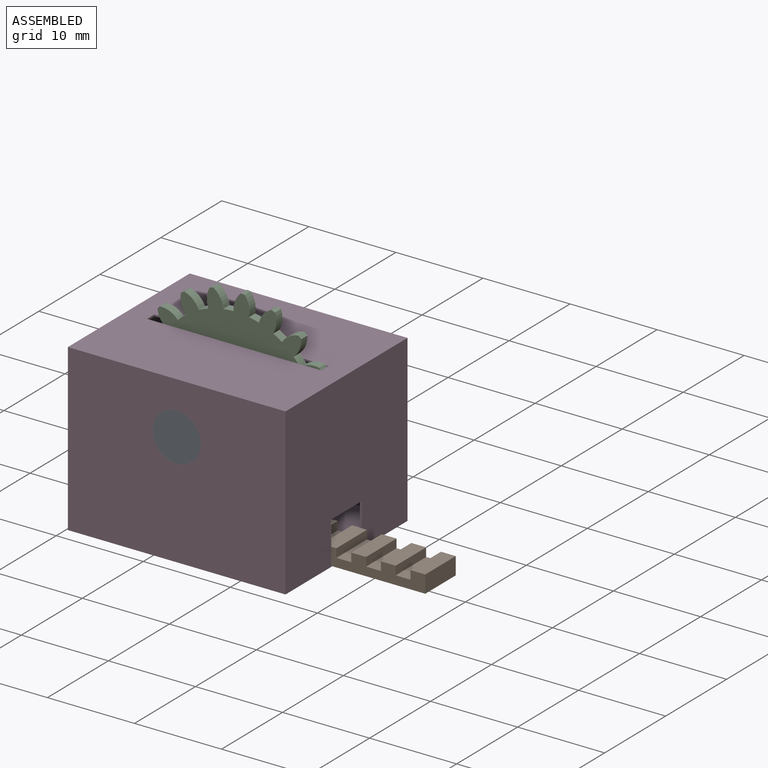
[diagram: assembled view]
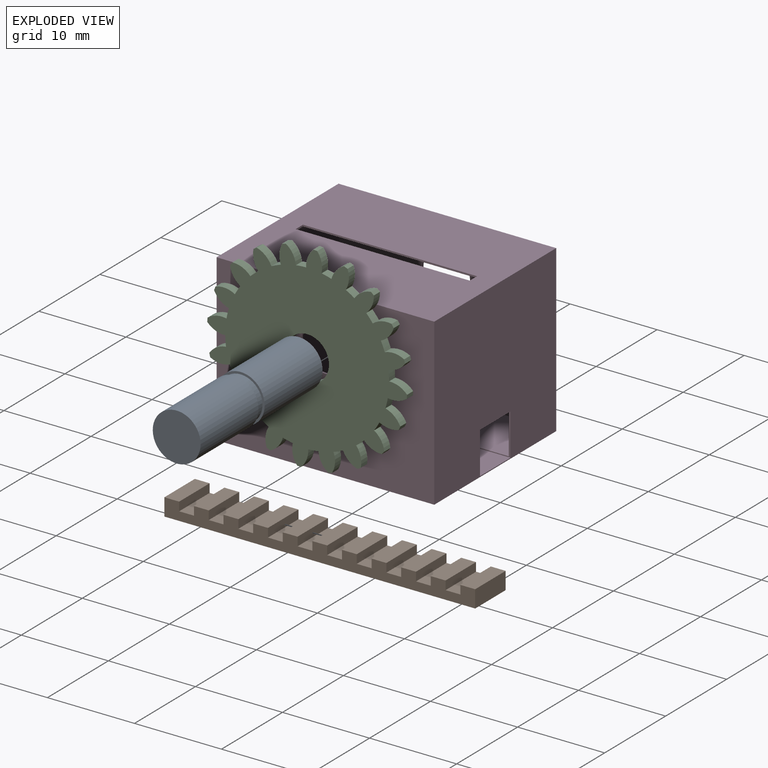
[diagram: exploded view]
GUIDED TOUR — MATED ASSEMBLY (Onshape document 58fee1694ee56b10306d2a6e, AutoMate assembly 58fee1694ee56b10306d2a6e_63d0f6873e6105f51c30c18d_0b6f07d7cc660a0ac1f73ef1_default)

This assembly has 4 components, labeled P0..P3 below (a component is one placed occurrence of a part; the same part can appear more than once), held together by 3 mates. A mate is a constraint between two components; its type names the relative motion it leaves free:
  FASTENED — locks the two components together rigidly (no relative motion),
  REVOLUTE — leaves rotation about the listed axis free (a hinge),
  SLIDER — leaves translation along the listed axis free.
Axis/direction vectors are unit vectors and 'through' points are millimeter coordinates, both in the assembly's world frame.

MATES
  1. FASTENED "Fastened 1": P3 <-> P0, direction (0.000, 1.000, 0.000) through (3.57, 0.49, -0.34) mm
  2. SLIDER "Slider 1": P3 <-> P1, axis (1.000, 0.000, 0.000) through (-8.83, 10.39, -10.84) mm
  3. REVOLUTE "Revolute 1": P0 <-> P2, axis (0.000, 1.000, 0.000) through (3.57, 10.39, -0.34) mm

ASSEMBLY ORDER
  1. P0 — the base component [order heuristic]
  2. P2 [order heuristic]
  3. P3 [order heuristic]
  4. P1 [order heuristic]
Order-tag legend:
  [order heuristic] — this assembly is geometrically interlocked (no collision-free removal order exists), so components are listed in mate-graph order; insertion feasibility is not verified.

Of the 4 components, 3 carry the full construction recipe — the FeatureScript program that regenerates the part's solid from scratch; the rest are supplied as boundary geometry only.
Each toured component is shown spotlighted twice — in the assembled view, then in the exploded view, where a leader line traces a displaced component back to its assembled socket (saturated green if recipe-attached, orange if geometry-only; every other component desaturated gray) — followed by its recipe or geometry summary and the mates that hold it.
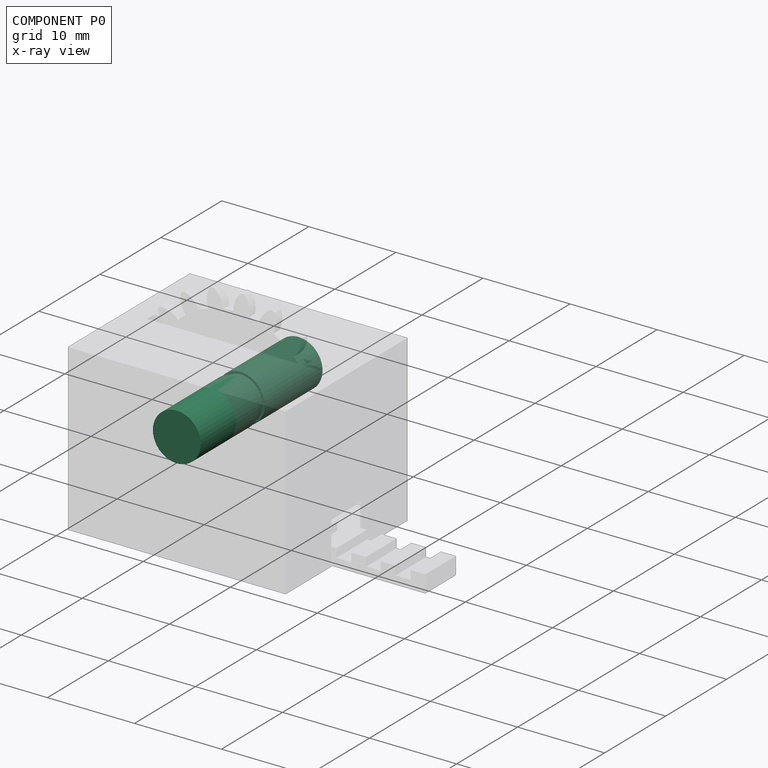
[diagram: component P0 — x-ray view]
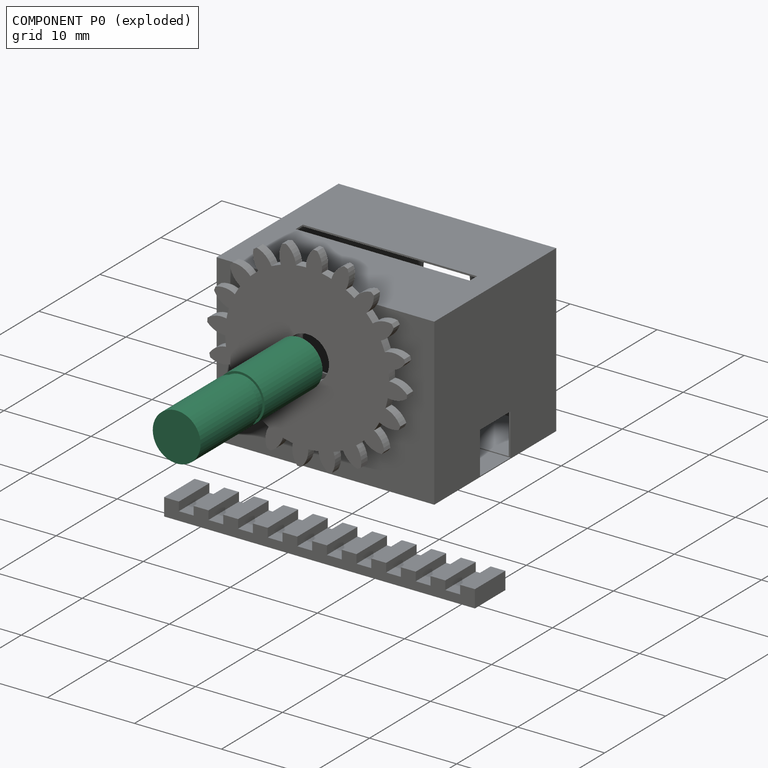
[diagram: component P0 — exploded]
COMPONENT P0 — recipe-attached (CADFS 00737201, mesh-verified: the recipe's output STEP matches this component's geometry to below the mesh-comparison resolution (tessellation chordal tolerance ~0.0322 mm)).
Held by: FASTENED mate "Fastened 1" to P3; REVOLUTE mate "Revolute 1" to P2.
Construction recipe (FeatureScript — the CAD program that rebuilds this solid; sketch coordinates are in the units given by the * unit suffixes, e.g. mm):

FeatureScript 1511;
import(path : "onshape/std/geometry.fs", version : "1511.0");
import(path : "onshape/std/common.fs", version : "1511.0");
const mm = millimeter;
const VERTEX = EntityType.VERTEX;
const EDGE = EntityType.EDGE;
const FACE = EntityType.FACE;
const BODY = EntityType.BODY;
function v(x, y){return vector(x, y);}
function OD(order){return orderDisambiguation(order);}
function OSD(set){return originalSetDisambiguation(set);}
function TD(topology){return topologyDisambiguation(topology);}
function TDD(query){return trueDependencyDisambiguation(query);}
function sQuery(a, b, c) {return sketchEntityQuery(a, b, c);}

annotation { "Feature Type Name" : "Feature", "Feature Type Description" : "" }
export const myFeature = defineFeature(function(context is Context, id is Id, definition is map)
    precondition{}
    {
        {
            var Q0;
            Q0=qCreatedBy(makeId("Front.planeOp"),FACE);
            var sketch = newSketch(context, id + "F0", { "sketchPlane" : qUnion([Q0])});
            skCircle(sketch, "E0", {"center": v(0, 0) * mm, "radius": 2.5 * mm});
            skSolve(sketch);
        }
        {
            var Q0;
            Q0=makeQuery(id+"F0.imprint","IMPRINT",FACE,{"disambiguationData":[TD([[makeQuery(id+"F0.imprint","IMPRINT",EDGE,{"derivedFrom":sQuery(id+"F0.wireOp",EDGE,"E0")}),1.0]])]});
            extrude(context, id + "F1", {"entities" : qUnion([Q0]), "depth" : 1 * mm, "offsetDistance" : 25 * mm});
        }
        {
            var Q0;
            Q0=makeQuery(id+"F1.opExtrude","CAP_FACE",FACE,{"disambiguationData":[OSD([sQuery(id+"F0.wireOp",EDGE,"E0")])],"isStart":true});
            var sketch = newSketch(context, id + "F2", { "sketchPlane" : qUnion([Q0])});
            skCircle(sketch, "E1", {"center": v(0, 0) * mm, "radius": 2.75 * mm});
            skSolve(sketch);
        }
        {
            var Q0;
            Q0 = qSketchRegion(id + "F2", true);
            extrude(context, id + "F3", {"entities" : qUnion([Q0]), "operationType" : NewBodyOperationType.ADD, "depth" : 9.5 * mm, "offsetDistance" : 25 * mm});
        }
        {
            var Q0;
            Q0=makeQuery(id+"F1.opExtrude","CAP_FACE",FACE,{"disambiguationData":[OSD([sQuery(id+"F0.wireOp",EDGE,"E0")])],"isStart":false});
            var sketch = newSketch(context, id + "F4", { "sketchPlane" : qUnion([Q0])});
            skCircle(sketch, "E2", {"center": v(0, 0) * mm, "radius": 2.75 * mm});
            skSolve(sketch);
        }
        {
            var Q0;
            Q0 = qSketchRegion(id + "F4", true);
            extrude(context, id + "F5", {"entities" : qUnion([Q0]), "operationType" : NewBodyOperationType.ADD, "depth" : 9.5 * mm, "offsetDistance" : 25 * mm});
        }
    });
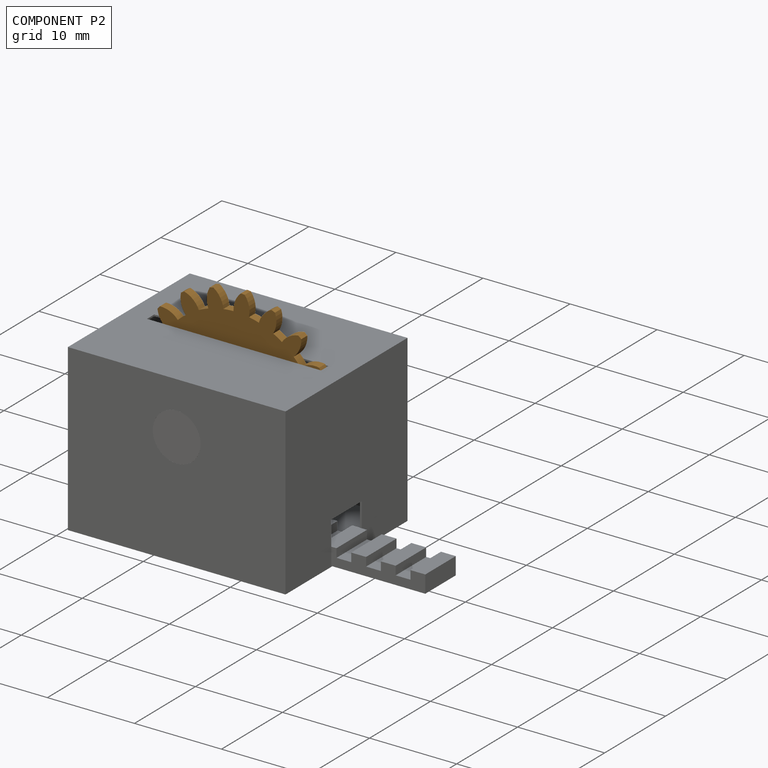
[diagram: component P2 — assembled]
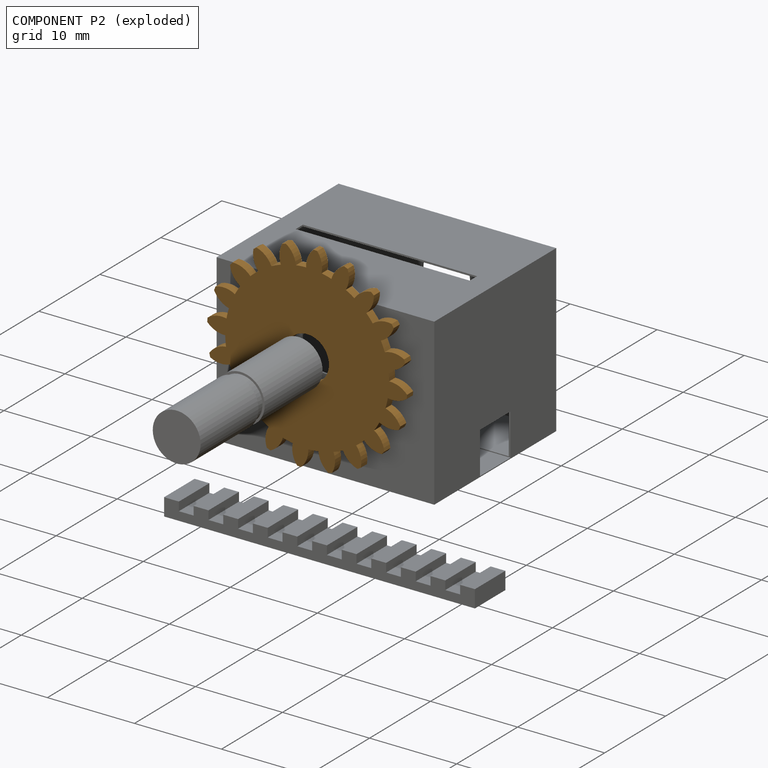
[diagram: component P2 — exploded]
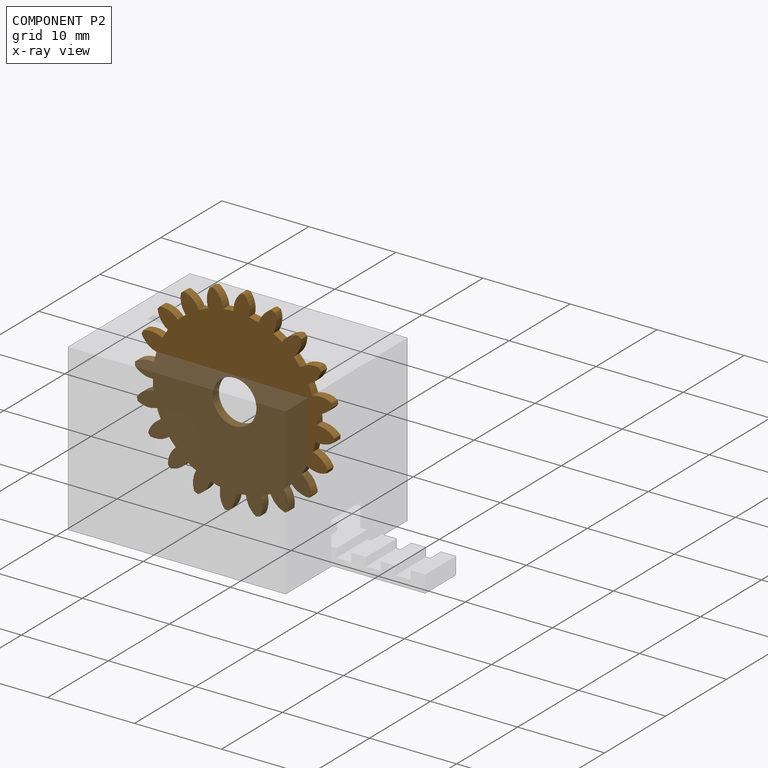
[diagram: component P2 — x-ray view]
COMPONENT P2 — geometry summary (no construction recipe available for this part):
  bounding box: 23.0 x 23.0 x 1.0 mm
  B-rep topology: 1 solid, 83 faces, 486 edges
  volume: 320 mm^3 (61% of its bounding box)
  symmetry: 4-fold rotationally symmetric about the z axis; mirror-symmetric across its z mid-plane
Held by: REVOLUTE mate "Revolute 1" to P0.
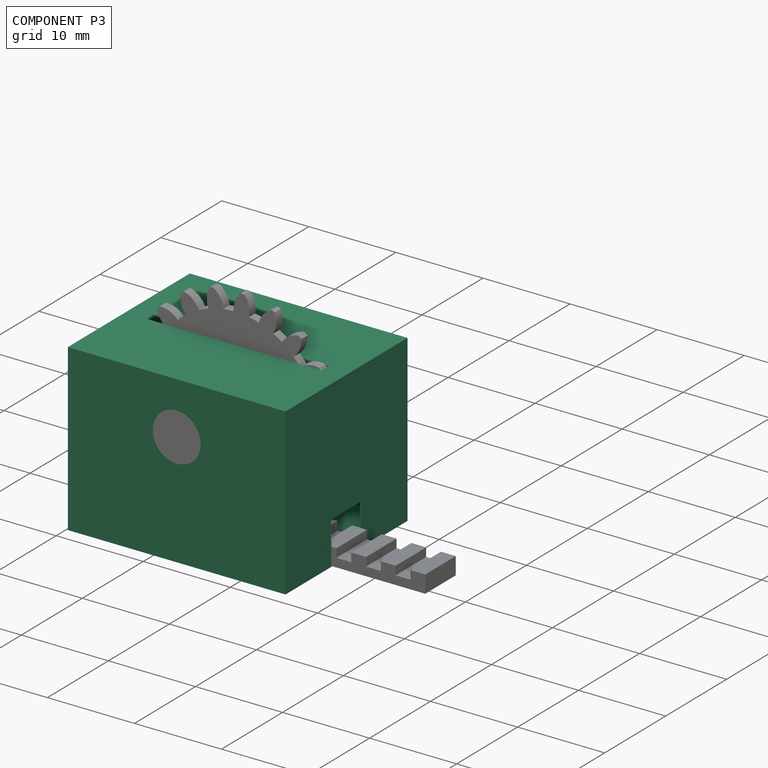
[diagram: component P3 — assembled]
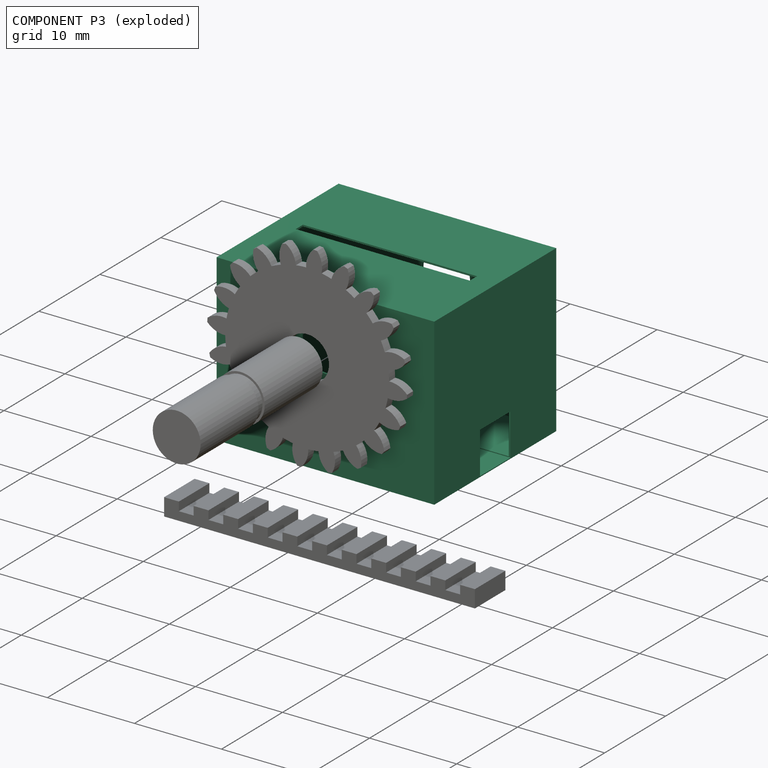
[diagram: component P3 — exploded]
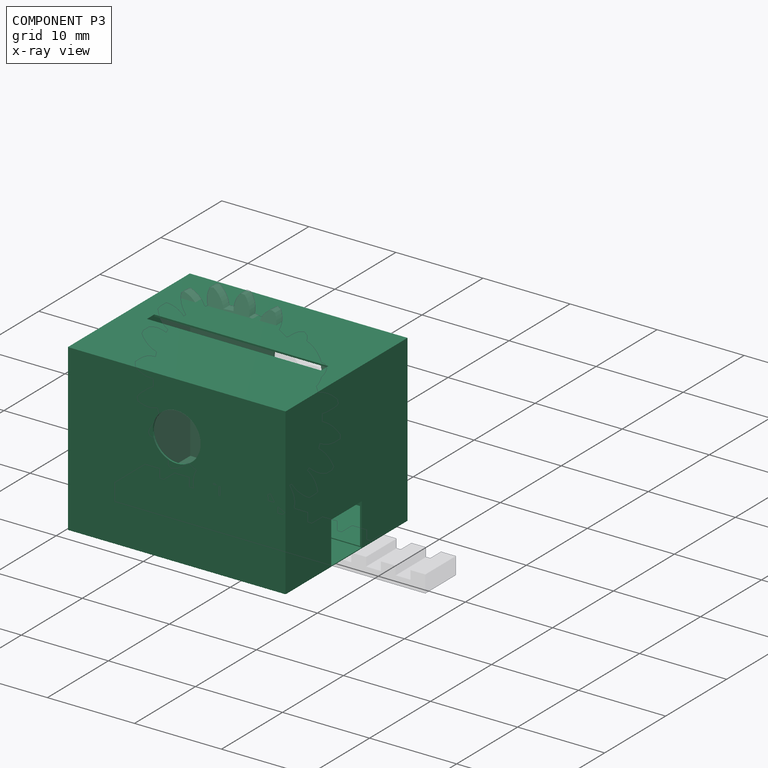
[diagram: component P3 — x-ray view]
COMPONENT P3 — recipe-attached (CADFS 00737203, mesh-verified: the recipe's output STEP matches this component's geometry to below the mesh-comparison resolution (tessellation chordal tolerance ~0.0558 mm)).
Held by: FASTENED mate "Fastened 1" to P0; SLIDER mate "Slider 1" to P1.
Construction recipe (FeatureScript — the CAD program that rebuilds this solid; sketch coordinates are in the units given by the * unit suffixes, e.g. mm):

FeatureScript 1511;
import(path : "onshape/std/geometry.fs", version : "1511.0");
import(path : "onshape/std/common.fs", version : "1511.0");
const mm = millimeter;
const VERTEX = EntityType.VERTEX;
const EDGE = EntityType.EDGE;
const FACE = EntityType.FACE;
const BODY = EntityType.BODY;
function v(x, y){return vector(x, y);}
function OD(order){return orderDisambiguation(order);}
function OSD(set){return originalSetDisambiguation(set);}
function TD(topology){return topologyDisambiguation(topology);}
function TDD(query){return trueDependencyDisambiguation(query);}
function sQuery(a, b, c) {return sketchEntityQuery(a, b, c);}

annotation { "Feature Type Name" : "Feature", "Feature Type Description" : "" }
export const myFeature = defineFeature(function(context is Context, id is Id, definition is map)
    precondition{}
    {
        {
            var Q0;
            Q0=qCreatedBy(makeId("Front.planeOp"),FACE);
            var sketch = newSketch(context, id + "F0", { "sketchPlane" : qUnion([Q0])});
            skLineSegment(sketch, "E0.bottom", {"start": v(0, 0) * mm, "end": v(-25, 0) * mm});
            skLineSegment(sketch, "E0.top", {"start": v(0, 19) * mm, "end": v(-25, 19) * mm});
            skLineSegment(sketch, "E0.left", {"start": v(0, 0) * mm, "end": v(0, 19) * mm});
            skLineSegment(sketch, "E0.right", {"start": v(-25, 0) * mm, "end": v(-25, 19) * mm});
            skSolve(sketch);
        }
        {
            var Q0;
            Q0=makeQuery(id+"F0.imprint","IMPRINT",FACE,{"disambiguationData":[TD([[makeQuery(id+"F0.imprint","IMPRINT",EDGE,{"derivedFrom":sQuery(id+"F0.wireOp",EDGE,"E0.bottom")}),-1.0]])]});
            extrude(context, id + "F1", {"entities" : qUnion([Q0]), "depth" : 20 * mm, "offsetDistance" : 25 * mm});
        }
        {
            var Q0;
            Q0=qCreatedBy(makeId("Front.planeOp"),FACE);
            var sketch = newSketch(context, id + "F2", { "sketchPlane" : qUnion([Q0])});
            skCircle(sketch, "E1", {"center": v(-12.5, 13) * mm, "radius": 2.75 * mm});
            skSolve(sketch);
        }
        {
            var Q0;
            Q0=makeQuery(id+"F1.opExtrude","CAP_FACE",FACE,{"disambiguationData":[OSD([sQuery(id+"F0.wireOp",EDGE,"E0.bottom"),sQuery(id+"F0.wireOp",EDGE,"E0.top"),sQuery(id+"F0.wireOp",EDGE,"E0.left"),sQuery(id+"F0.wireOp",EDGE,"E0.right")])],"isStart":true});
            var Q1;
            Q1=makeQuery(id+"F1.opExtrude","SWEPT_BODY",BODY,{"disambiguationData":[OSD([sQuery(id+"F0.wireOp",EDGE,"E0.bottom"),sQuery(id+"F0.wireOp",EDGE,"E0.top"),sQuery(id+"F0.wireOp",EDGE,"E0.left"),sQuery(id+"F0.wireOp",EDGE,"E0.right")])]});
            shell(context, id + "F3", {"isHollow" : true, "entities" : qUnion([Q0]), "parts" : qUnion([Q1]), "thickness" : 0.2 * mm});
        }
        {
            var Q0;
            Q0=makeQuery(id+"F2.imprint","IMPRINT",FACE,{"disambiguationData":[TD([[makeQuery(id+"F2.imprint","IMPRINT",EDGE,{"derivedFrom":sQuery(id+"F2.wireOp",EDGE,"E1")}),1.0]])]});
            extrude(context, id + "F4", {"entities" : qUnion([Q0]), "operationType" : NewBodyOperationType.REMOVE, "oppositeDirection" : true, "depth" : -25 * mm, "offsetDistance" : 25 * mm});
        }
        {
            var Q0;
            Q0=makeQuery(id+"F1.opExtrude","SWEPT_FACE",FACE,{"disambiguationData":[OSD([sQuery(id+"F0.wireOp",EDGE,"E0.top")])]});
            var sketch = newSketch(context, id + "F5", { "sketchPlane" : qUnion([Q0])});
            skLineSegment(sketch, "E2.bottom", {"start": v(-22.5, -9.4) * mm, "end": v(-2.5, -9.4) * mm});
            skLineSegment(sketch, "E2.top", {"start": v(-22.5, -10.6) * mm, "end": v(-2.5, -10.6) * mm});
            skLineSegment(sketch, "E2.left", {"start": v(-22.5, -9.4) * mm, "end": v(-22.5, -10.6) * mm});
            skLineSegment(sketch, "E2.right", {"start": v(-2.5, -9.4) * mm, "end": v(-2.5, -10.6) * mm});
            skSolve(sketch);
        }
        {
            var Q0;
            Q0 = qSketchRegion(id + "F5", true);
            extrude(context, id + "F6", {"entities" : qUnion([Q0]), "operationType" : NewBodyOperationType.REMOVE, "oppositeDirection" : true, "depth" : 1 * mm, "offsetDistance" : 25 * mm});
        }
        {
            var Q0;
            Q0=makeQuery(id+"F1.opExtrude","SWEPT_FACE",FACE,{"disambiguationData":[OSD([sQuery(id+"F0.wireOp",EDGE,"E0.left")])]});
            var sketch = newSketch(context, id + "F7", { "sketchPlane" : qUnion([Q0])});
            skLineSegment(sketch, "E3.bottom", {"start": v(-12.5, 4.9) * mm, "end": v(-7.5, 4.9) * mm});
            skLineSegment(sketch, "E3.top", {"start": v(-12.5, 0.1) * mm, "end": v(-7.5, 0.1) * mm});
            skLineSegment(sketch, "E3.left", {"start": v(-12.5, 4.9) * mm, "end": v(-12.5, 0.1) * mm});
            skLineSegment(sketch, "E3.right", {"start": v(-7.5, 4.9) * mm, "end": v(-7.5, 0.1) * mm});
            skSolve(sketch);
        }
        {
            var Q0;
            Q0 = qSketchRegion(id + "F7", true);
            extrude(context, id + "F8", {"entities" : qUnion([Q0]), "operationType" : NewBodyOperationType.REMOVE, "oppositeDirection" : true, "depth" : 24.9 * mm, "offsetDistance" : 25 * mm});
        }
    });
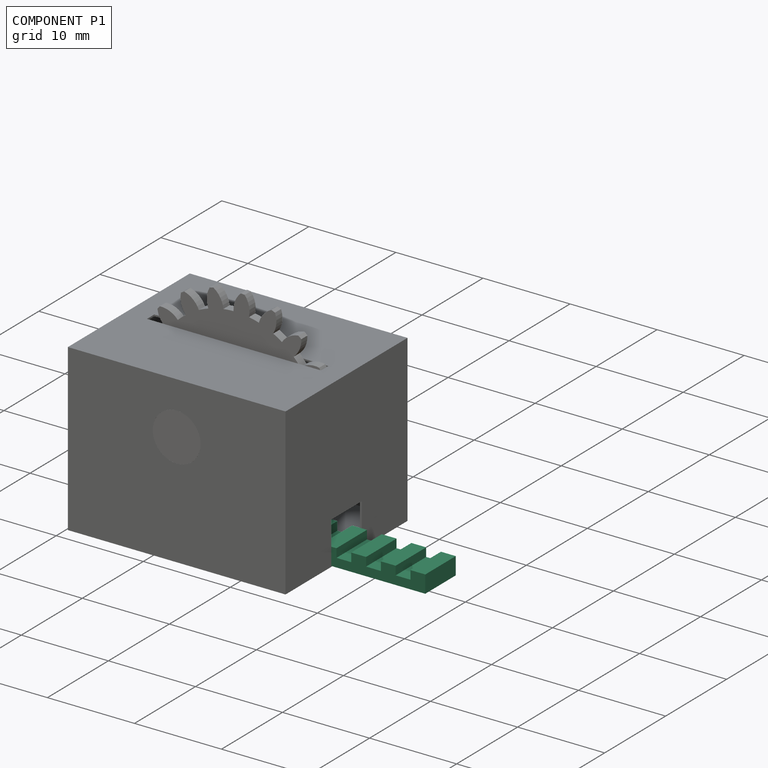
[diagram: component P1 — assembled]
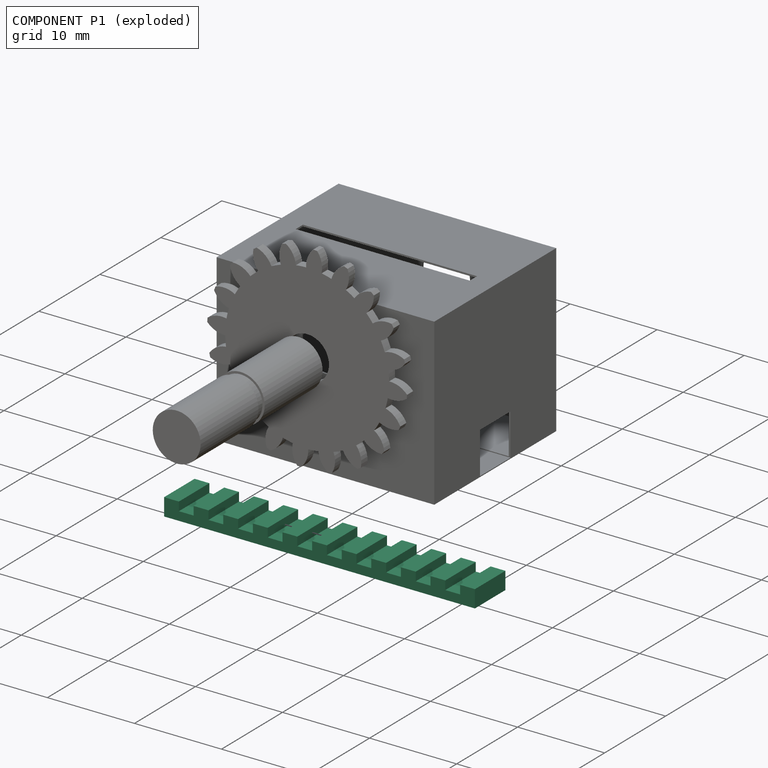
[diagram: component P1 — exploded]
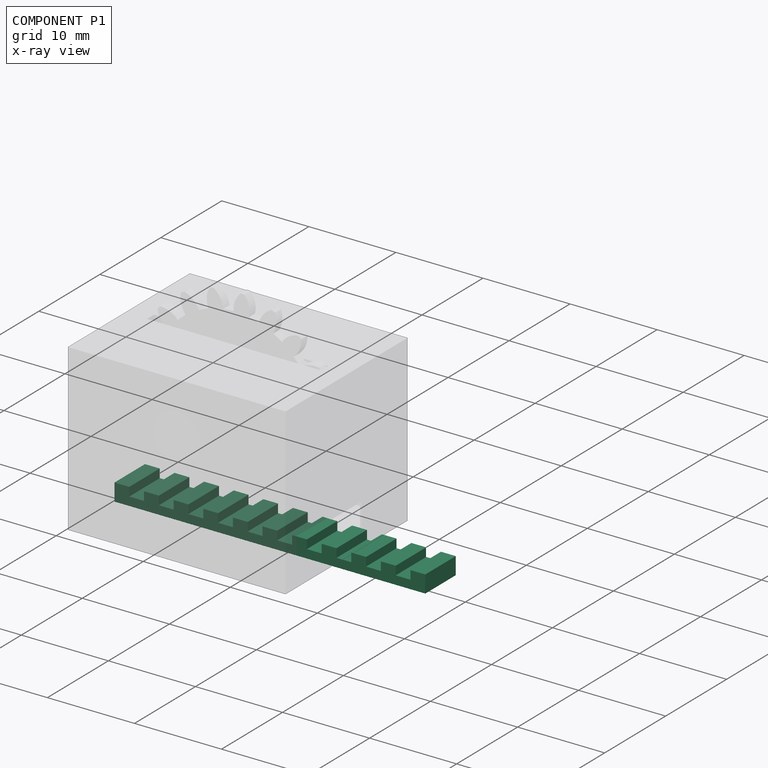
[diagram: component P1 — x-ray view]
COMPONENT P1 — recipe-attached (CADFS 00737202, mesh-verified: the recipe's output STEP matches this component's geometry to below the mesh-comparison resolution (tessellation chordal tolerance ~0.0542 mm)).
Held by: SLIDER mate "Slider 1" to P3.
Construction recipe (FeatureScript — the CAD program that rebuilds this solid; sketch coordinates are in the units given by the * unit suffixes, e.g. mm):

FeatureScript 1511;
import(path : "onshape/std/geometry.fs", version : "1511.0");
import(path : "onshape/std/common.fs", version : "1511.0");
const mm = millimeter;
const VERTEX = EntityType.VERTEX;
const EDGE = EntityType.EDGE;
const FACE = EntityType.FACE;
const BODY = EntityType.BODY;
function v(x, y){return vector(x, y);}
function OD(order){return orderDisambiguation(order);}
function OSD(set){return originalSetDisambiguation(set);}
function TD(topology){return topologyDisambiguation(topology);}
function TDD(query){return trueDependencyDisambiguation(query);}
function sQuery(a, b, c) {return sketchEntityQuery(a, b, c);}

annotation { "Feature Type Name" : "Feature", "Feature Type Description" : "" }
export const myFeature = defineFeature(function(context is Context, id is Id, definition is map)
    precondition{}
    {
        {
            var Q0;
            Q0=qCreatedBy(makeId("Front.planeOp"),FACE);
            var sketch = newSketch(context, id + "F0", { "sketchPlane" : qUnion([Q0])});
            skLineSegment(sketch, "E0.bottom", {"start": v(0, 0) * mm, "end": v(-35.7, 0) * mm});
            skLineSegment(sketch, "E0.top", {"start": v(0, 2) * mm, "end": v(-35.7, 2) * mm});
            skLineSegment(sketch, "E0.left", {"start": v(0, 0) * mm, "end": v(0, 2) * mm});
            skLineSegment(sketch, "E0.right", {"start": v(-35.7, 0) * mm, "end": v(-35.7, 2) * mm});
            skSolve(sketch);
        }
        {
            var Q0;
            Q0=makeQuery(id+"F0.imprint","IMPRINT",FACE,{"disambiguationData":[TD([[makeQuery(id+"F0.imprint","IMPRINT",EDGE,{"derivedFrom":sQuery(id+"F0.wireOp",EDGE,"E0.bottom")}),-1.0]])]});
            extrude(context, id + "F1", {"entities" : qUnion([Q0]), "depth" : 5 * mm, "offsetDistance" : 25 * mm});
        }
        {
            var Q0;
            Q0=makeQuery(id+"F1.opExtrude","CAP_FACE",FACE,{"disambiguationData":[OSD([sQuery(id+"F0.wireOp",EDGE,"E0.bottom"),sQuery(id+"F0.wireOp",EDGE,"E0.top"),sQuery(id+"F0.wireOp",EDGE,"E0.left"),sQuery(id+"F0.wireOp",EDGE,"E0.right")])],"isStart":false});
            var sketch = newSketch(context, id + "F2", { "sketchPlane" : qUnion([Q0])});
            skLineSegment(sketch, "E1.bottom", {"start": v(-34, 2) * mm, "end": v(-32.3, 2) * mm});
            skLineSegment(sketch, "E1.top", {"start": v(-34, 1) * mm, "end": v(-32.3, 1) * mm});
            skLineSegment(sketch, "E1.left", {"start": v(-34, 2) * mm, "end": v(-34, 1) * mm});
            skLineSegment(sketch, "E1.right", {"start": v(-32.3, 2) * mm, "end": v(-32.3, 1) * mm});
            skLineSegment(sketch, "E2.1.0.0", {"start": v(-30.6, 2) * mm, "end": v(-28.9, 2) * mm});
            skLineSegment(sketch, "E2.1.0.1", {"start": v(-28.9, 2) * mm, "end": v(-28.9, 1) * mm});
            skLineSegment(sketch, "E2.1.0.2", {"start": v(-30.6, 1) * mm, "end": v(-28.9, 1) * mm});
            skLineSegment(sketch, "E2.1.0.3", {"start": v(-30.6, 2) * mm, "end": v(-30.6, 1) * mm});
            skLineSegment(sketch, "E2.2.0.0", {"start": v(-27.2, 2) * mm, "end": v(-25.5, 2) * mm});
            skLineSegment(sketch, "E2.2.0.1", {"start": v(-25.5, 2) * mm, "end": v(-25.5, 1) * mm});
            skLineSegment(sketch, "E2.2.0.2", {"start": v(-27.2, 1) * mm, "end": v(-25.5, 1) * mm});
            skLineSegment(sketch, "E2.2.0.3", {"start": v(-27.2, 2) * mm, "end": v(-27.2, 1) * mm});
            skLineSegment(sketch, "E2.3.0.0", {"start": v(-23.8, 2) * mm, "end": v(-22.1, 2) * mm});
            skLineSegment(sketch, "E2.3.0.1", {"start": v(-22.1, 2) * mm, "end": v(-22.1, 1) * mm});
            skLineSegment(sketch, "E2.3.0.2", {"start": v(-23.8, 1) * mm, "end": v(-22.1, 1) * mm});
            skLineSegment(sketch, "E2.3.0.3", {"start": v(-23.8, 2) * mm, "end": v(-23.8, 1) * mm});
            skLineSegment(sketch, "E2.4.0.0", {"start": v(-20.4, 2) * mm, "end": v(-18.7, 2) * mm});
            skLineSegment(sketch, "E2.4.0.1", {"start": v(-18.7, 2) * mm, "end": v(-18.7, 1) * mm});
            skLineSegment(sketch, "E2.4.0.2", {"start": v(-20.4, 1) * mm, "end": v(-18.7, 1) * mm});
            skLineSegment(sketch, "E2.4.0.3", {"start": v(-20.4, 2) * mm, "end": v(-20.4, 1) * mm});
            skLineSegment(sketch, "E2.5.0.0", {"start": v(-17, 2) * mm, "end": v(-15.3, 2) * mm});
            skLineSegment(sketch, "E2.5.0.1", {"start": v(-15.3, 2) * mm, "end": v(-15.3, 1) * mm});
            skLineSegment(sketch, "E2.5.0.2", {"start": v(-17, 1) * mm, "end": v(-15.3, 1) * mm});
            skLineSegment(sketch, "E2.5.0.3", {"start": v(-17, 2) * mm, "end": v(-17, 1) * mm});
            skLineSegment(sketch, "E2.6.0.0", {"start": v(-13.6, 2) * mm, "end": v(-11.9, 2) * mm});
            skLineSegment(sketch, "E2.6.0.1", {"start": v(-11.9, 2) * mm, "end": v(-11.9, 1) * mm});
            skLineSegment(sketch, "E2.6.0.2", {"start": v(-13.6, 1) * mm, "end": v(-11.9, 1) * mm});
            skLineSegment(sketch, "E2.6.0.3", {"start": v(-13.6, 2) * mm, "end": v(-13.6, 1) * mm});
            skLineSegment(sketch, "E2.direction1", {"start": v(-34, 1) * mm, "end": v(-30.6, 1) * mm, "construction": true});
            skLineSegment(sketch, "E3.0.7.0", {"start": v(-10.2, 2) * mm, "end": v(-8.5, 2) * mm});
            skLineSegment(sketch, "E3.3.7.0", {"start": v(-8.5, 2) * mm, "end": v(-8.5, 1) * mm});
            skLineSegment(sketch, "E3.6.7.0", {"start": v(-10.2, 1) * mm, "end": v(-8.5, 1) * mm});
            skLineSegment(sketch, "E3.9.7.0", {"start": v(-10.2, 2) * mm, "end": v(-10.2, 1) * mm});
            skLineSegment(sketch, "E3.0.8.0", {"start": v(-6.8, 2) * mm, "end": v(-5.1, 2) * mm});
            skLineSegment(sketch, "E3.3.8.0", {"start": v(-5.1, 2) * mm, "end": v(-5.1, 1) * mm});
            skLineSegment(sketch, "E3.6.8.0", {"start": v(-6.8, 1) * mm, "end": v(-5.1, 1) * mm});
            skLineSegment(sketch, "E3.9.8.0", {"start": v(-6.8, 2) * mm, "end": v(-6.8, 1) * mm});
            skLineSegment(sketch, "E4.0.9.0", {"start": v(-3.4, 2) * mm, "end": v(-1.7, 2) * mm});
            skLineSegment(sketch, "E4.3.9.0", {"start": v(-1.7, 2) * mm, "end": v(-1.7, 1) * mm});
            skLineSegment(sketch, "E4.6.9.0", {"start": v(-3.4, 1) * mm, "end": v(-1.7, 1) * mm});
            skLineSegment(sketch, "E4.9.9.0", {"start": v(-3.4, 2) * mm, "end": v(-3.4, 1) * mm});
            skSolve(sketch);
        }
        {
            var Q0;
            Q0=makeQuery(id+"F2.imprint","IMPRINT",FACE,{"disambiguationData":[TD([[makeQuery(id+"F2.imprint","IMPRINT",EDGE,{"derivedFrom":sQuery(id+"F2.wireOp",EDGE,"E1.bottom")}),1.0]])]});
            var Q1;
            Q1=makeQuery(id+"F2.imprint","IMPRINT",FACE,{"disambiguationData":[TD([[makeQuery(id+"F2.imprint","IMPRINT",EDGE,{"derivedFrom":sQuery(id+"F2.wireOp",EDGE,"E2.1.0.0")}),1.0]])]});
            var Q2;
            Q2=makeQuery(id+"F2.imprint","IMPRINT",FACE,{"disambiguationData":[TD([[makeQuery(id+"F2.imprint","IMPRINT",EDGE,{"derivedFrom":sQuery(id+"F2.wireOp",EDGE,"E2.2.0.0")}),1.0]])]});
            var Q3;
            Q3=makeQuery(id+"F2.imprint","IMPRINT",FACE,{"disambiguationData":[TD([[makeQuery(id+"F2.imprint","IMPRINT",EDGE,{"derivedFrom":sQuery(id+"F2.wireOp",EDGE,"E2.3.0.0")}),1.0]])]});
            var Q4;
            Q4=makeQuery(id+"F2.imprint","IMPRINT",FACE,{"disambiguationData":[TD([[makeQuery(id+"F2.imprint","IMPRINT",EDGE,{"derivedFrom":sQuery(id+"F2.wireOp",EDGE,"E2.4.0.0")}),1.0]])]});
            var Q5;
            Q5=makeQuery(id+"F2.imprint","IMPRINT",FACE,{"disambiguationData":[TD([[makeQuery(id+"F2.imprint","IMPRINT",EDGE,{"derivedFrom":sQuery(id+"F2.wireOp",EDGE,"E2.5.0.0")}),1.0]])]});
            var Q6;
            Q6=makeQuery(id+"F2.imprint","IMPRINT",FACE,{"disambiguationData":[TD([[makeQuery(id+"F2.imprint","IMPRINT",EDGE,{"derivedFrom":sQuery(id+"F2.wireOp",EDGE,"E2.6.0.0")}),1.0]])]});
            extrude(context, id + "F3", {"entities" : qUnion([Q0, Q1, Q2, Q3, Q4, Q5, Q6]), "operationType" : NewBodyOperationType.REMOVE, "oppositeDirection" : true, "depth" : 5 * mm, "offsetDistance" : 25 * mm});
        }
        {
            var Q0;
            Q0=makeQuery(id+"F2.imprint","IMPRINT",FACE,{"disambiguationData":[TD([[makeQuery(id+"F2.imprint","IMPRINT",EDGE,{"derivedFrom":sQuery(id+"F2.wireOp",EDGE,"E3.0.7.0")}),1.0]])]});
            var Q1;
            Q1=makeQuery(id+"F2.imprint","IMPRINT",FACE,{"disambiguationData":[TD([[makeQuery(id+"F2.imprint","IMPRINT",EDGE,{"derivedFrom":sQuery(id+"F2.wireOp",EDGE,"E3.0.8.0")}),1.0]])]});
            var Q2;
            Q2=makeQuery(id+"F2.imprint","IMPRINT",FACE,{"disambiguationData":[TD([[makeQuery(id+"F2.imprint","IMPRINT",EDGE,{"derivedFrom":sQuery(id+"F2.wireOp",EDGE,"E4.0.9.0")}),1.0]])]});
            extrude(context, id + "F4", {"entities" : qUnion([Q0, Q1, Q2]), "operationType" : NewBodyOperationType.REMOVE, "oppositeDirection" : true, "depth" : 5 * mm, "offsetDistance" : 25 * mm});
        }
    });
PROVENANCE & LICENSES
Assembly (occurrences, transforms, mates, per-part STEP geometry): AutoMate dataset, Zenodo record 7776208, CC0.
Construction recipes: CADFS (HuggingFace VladPyatov/CADFS, CC-BY-4.0, layered over the ABC dataset), FeatureScript reconstruction programs keyed by ABC model id.
Join: ABC meta listings map ABC model id -> Onshape documentId; within a shared document, parts are matched by geometric signature (bounding-box dims + volume at 0.1% relative tolerance, exact B-rep face/solid counts).
Verification: 3 of this assembly's 4 components carry a recipe attachment, and every attachment is mesh-verified: the CADFS STEP and the AutoMate member STEP were compared as meshes in their shared local frame (symmetric sampled-point-to-mesh distance); worst across the 3 attachments: below the mesh-comparison resolution (tessellation chordal tolerance ~0.0558 mm) on a 37 mm part.
Renders: orthographic iso camera (az 35 / el 25); the floor grid conveys scale (grid pitch printed in each image; no ruler). In the exploded view each component is displaced by its stored offset vector: the offsets alone carry the explosion direction (mate normal/axis signs are not orientation cues and do not encode it), and separation distances are assigned per mate-chain, not proportionally to assembly-order depth.
